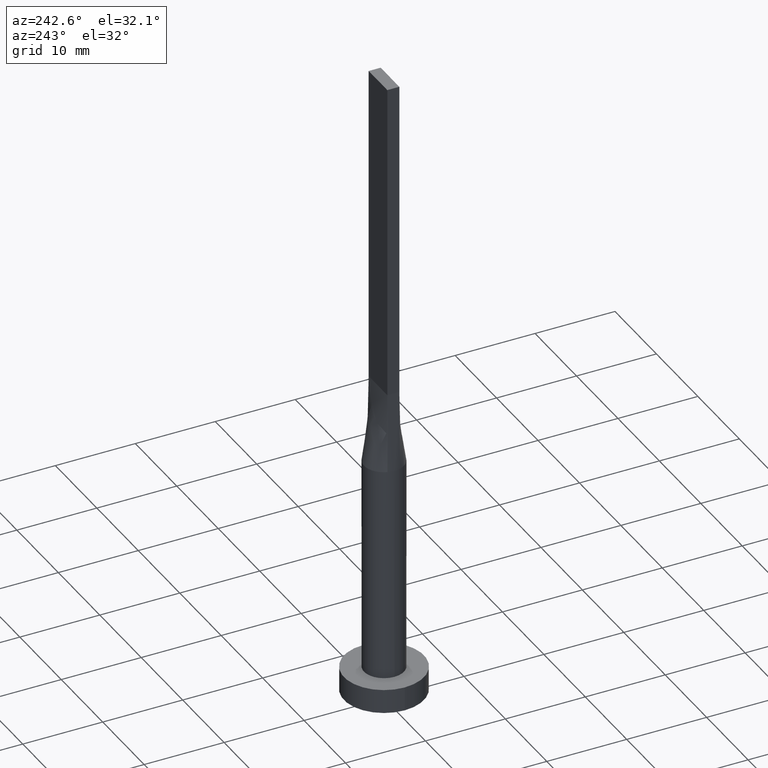
[diagram: clean part render]
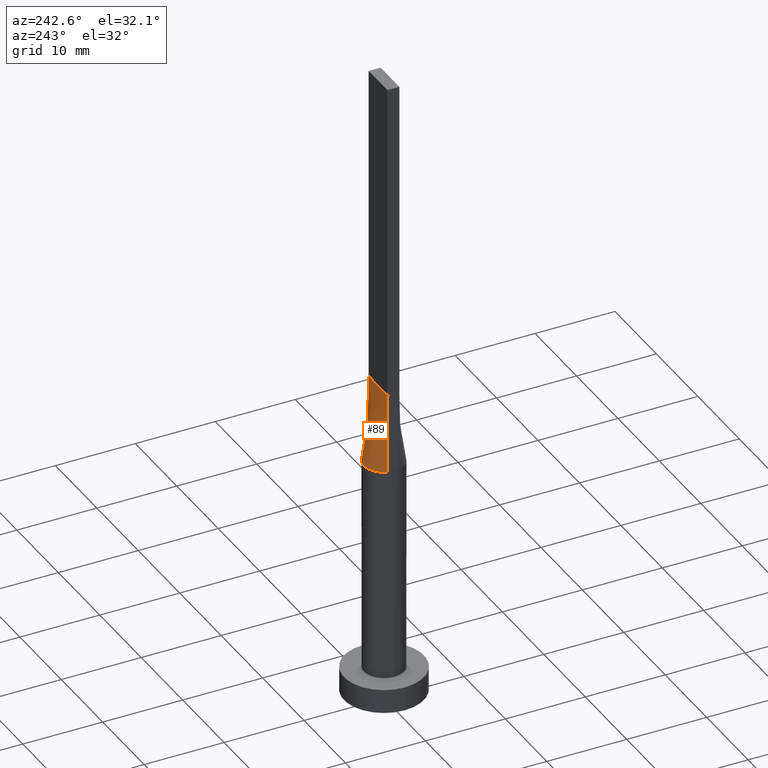
[diagram: same view with one face highlighted and labeled with its STEP entity id]
A machine part, auxiliary view. The second image highlights one B-rep face of the part: STEP entity #89.
In plain terms, the highlighted face is a freeform B-spline surface patch.
Its self-contained STEP definition (entity closure, byte-faithful):
#1 = CARTESIAN_POINT ( 'NONE',  ( 1.799471046981194977, 1.755719709239274007, 30.00000000000000355 ) ) ;
#3 = CARTESIAN_POINT ( 'NONE',  ( 0.6000386972366480443, 2.444291348568451649, 29.99999999999999645 ) ) ;
#24 = CARTESIAN_POINT ( 'NONE',  ( -0.9375000000000113243, 0.7500000000000002220, 39.99999999999999289 ) ) ;
#26 = VECTOR ( 'NONE', #455, 1000.000000000000114 ) ;
#28 = CARTESIAN_POINT ( 'NONE',  ( -0.7500000000000122125, 0.7500000000000002220, 39.99999999999999289 ) ) ;
#42 = ORIENTED_EDGE ( 'NONE', *, *, #108, .T. ) ;
#50 = CARTESIAN_POINT ( 'NONE',  ( 0.9374999999999881206, 0.7500000000000003331, 39.99999999999999289 ) ) ;
#51 = CARTESIAN_POINT ( 'NONE',  ( -1.390086206340438890, 2.094828891646495883, 30.00000000000000355 ) ) ;
#54 = CARTESIAN_POINT ( 'NONE',  ( 2.218933079238281980, 1.174882007252000315, 29.99999999999999289 ) ) ;
#58 = LINE ( 'NONE', #353, #129 ) ;
#63 = CARTESIAN_POINT ( 'NONE',  ( -1.799471046981195199, 1.755719709239274229, 30.00000000000001066 ) ) ;
#66 = LINE ( 'NONE', #196, #26 ) ;
#71 = CARTESIAN_POINT ( 'NONE',  ( -2.371795432964766359, 0.7905989074952441964, 30.00000000000000000 ) ) ;
#89 = ADVANCED_FACE ( 'NONE', ( #363 ), #153, .T. ) ;
#93 = CARTESIAN_POINT ( 'NONE',  ( -2.371795432964766359, 0.7905989074952441964, 30.00000000000000000 ) ) ;
#100 = CARTESIAN_POINT ( 'NONE',  ( 1.964343640889990361, 1.563766543189047287, 29.99999999999998934 ) ) ;
#101 = VERTEX_POINT ( 'NONE', #71 ) ;
#108 = EDGE_CURVE ( 'NONE', #101, #352, #415, .T. ) ;
#115 = CARTESIAN_POINT ( 'NONE',  ( -0.1875000000000138778, 0.7500000000000003331, 39.99999999999999289 ) ) ;
#129 = VECTOR ( 'NONE', #275, 1000.000000000000000 ) ;
#134 = CARTESIAN_POINT ( 'NONE',  ( 1.145194483530141749, 2.241235424885160921, 30.00000000000000355 ) ) ;
#137 = CARTESIAN_POINT ( 'NONE',  ( -1.964343640889990805, 1.563766543189048175, 30.00000000000000000 ) ) ;
#141 = CARTESIAN_POINT ( 'NONE',  ( 2.309208245126284975, 0.9780694150420948807, 29.99999999999999645 ) ) ;
#144 = CARTESIAN_POINT ( 'NONE',  ( 1.964343640889990361, 1.563766543189047287, 29.99999999999998934 ) ) ;
#151 = CARTESIAN_POINT ( 'NONE',  ( 1.312499999999990230, 0.7500000000000002220, 39.99999999999999289 ) ) ;
#153 = B_SPLINE_SURFACE_WITH_KNOTS ( 'NONE', 3, 1, ( 
 ( #186, #358 ),
 ( #141, #535 ),
 ( #407, #193 ),
 ( #144, #548 ),
 ( #501, #151 ),
 ( #322, #50 ),
 ( #225, #316 ),
 ( #3, #184 ),
 ( #274, #291 ),
 ( #418, #115 ),
 ( #207, #420 ),
 ( #237, #28 ),
 ( #425, #24 ),
 ( #63, #242 ),
 ( #509, #381 ),
 ( #243, #560 ),
 ( #555, #289 ),
 ( #333, #373 ) ),
 .UNSPECIFIED., .F., .F., .F.,
 ( 4, 2, 2, 2, 2, 2, 2, 2, 4 ),
 ( 2, 2 ),
 ( 0.000000000000000000, 0.1250000000000000000, 0.2500000000000000000, 0.3750000000000000000, 0.5000000000000000000, 0.6250000000000000000, 0.7500000000000000000, 0.8750000000000000000, 1.000000000000000000 ),
 ( 0.000000000000000000, 1.000000000000000000 ),
 .UNSPECIFIED. ) ;
#183 = CARTESIAN_POINT ( 'NONE',  ( -0.3003163416900526128, 2.499999999999999112, 29.99999999999999645 ) ) ;
#184 = CARTESIAN_POINT ( 'NONE',  ( 0.3749999999999862332, 0.7500000000000003331, 39.99999999999999289 ) ) ;
#186 = CARTESIAN_POINT ( 'NONE',  ( 2.371708245126284531, 0.7905694150420949917, 30.00000000000000000 ) ) ;
#188 = CARTESIAN_POINT ( 'NONE',  ( -2.309208245126284975, 0.9780694150420951027, 30.00000000000000355 ) ) ;
#193 = CARTESIAN_POINT ( 'NONE',  ( 1.874999999999995115, 0.7500000000000002220, 39.99999999999999289 ) ) ;
#196 = CARTESIAN_POINT ( 'NONE',  ( 2.310854122563142266, 0.7702847075210476069, 35.00000000000000000 ) ) ;
#197 = EDGE_CURVE ( 'NONE', #430, #573, #66, .T. ) ;
#204 = DIRECTION ( 'NONE',  ( 0.01216982305197525371, -0.004056607683991667393, 0.9999177162851859979 ) ) ;
#207 = CARTESIAN_POINT ( 'NONE',  ( -0.6000386972366482663, 2.444291348568452094, 30.00000000000000000 ) ) ;
#225 = CARTESIAN_POINT ( 'NONE',  ( 1.145194483530141749, 2.241235424885160921, 30.00000000000000355 ) ) ;
#226 = CARTESIAN_POINT ( 'NONE',  ( -2.218933079238281536, 1.174882007251999871, 29.99999999999999645 ) ) ;
#228 = CARTESIAN_POINT ( 'NONE',  ( 2.371772892450305648, 0.7905912578404317159, 30.00000000000000000 ) ) ;
#231 = CARTESIAN_POINT ( 'NONE',  ( 2.371772892450305648, 0.7905912578404317159, 30.00000000000000000 ) ) ;
#237 = CARTESIAN_POINT ( 'NONE',  ( -1.145194483530141527, 2.241235424885160921, 29.99999999999999645 ) ) ;
#239 = CARTESIAN_POINT ( 'NONE',  ( -2.310854122563142266, 0.7702847075210473848, 35.00000000000000000 ) ) ;
#242 = CARTESIAN_POINT ( 'NONE',  ( -1.312500000000008882, 0.7500000000000002220, 39.99999999999999289 ) ) ;
#243 = CARTESIAN_POINT ( 'NONE',  ( -2.218933079238281536, 1.174882007251999871, 29.99999999999999645 ) ) ;
#257 = ORIENTED_EDGE ( 'NONE', *, *, #329, .F. ) ;
#267 = CARTESIAN_POINT ( 'NONE',  ( 0.3003163416900527238, 2.499999999999999556, 30.00000000000000355 ) ) ;
#273 = B_SPLINE_CURVE_WITH_KNOTS ( 'NONE', 3,
 ( #228, #534, #54, #100, #1, #541, #134, #452, #267, #183, #310, #319, #51, #497, #137, #226, #188, #93 ),
 .UNSPECIFIED., .F., .F.,
 ( 4, 2, 2, 2, 2, 2, 2, 2, 4 ),
 ( 0.000000000000000000, 0.1250000000000000000, 0.2500000000000000000, 0.3750000000000000000, 0.5000000000000000000, 0.6250000000000000000, 0.7500000000000000000, 0.8750000000000000000, 1.000000000000000000 ),
 .UNSPECIFIED. ) ;
#274 = CARTESIAN_POINT ( 'NONE',  ( 0.3003163416900527238, 2.499999999999999556, 30.00000000000000355 ) ) ;
#275 = DIRECTION ( 'NONE',  ( -1.000000000000000000, -0.000000000000000000, -0.000000000000000000 ) ) ;
#289 = CARTESIAN_POINT ( 'NONE',  ( -2.062500000000001776, 0.7500000000000002220, 39.99999999999999289 ) ) ;
#291 = CARTESIAN_POINT ( 'NONE',  ( 0.1874999999999860112, 0.7500000000000003331, 40.00000000000000000 ) ) ;
#308 = ORIENTED_EDGE ( 'NONE', *, *, #365, .T. ) ;
#310 = CARTESIAN_POINT ( 'NONE',  ( -0.6000386972366482663, 2.444291348568452094, 30.00000000000000000 ) ) ;
#316 = CARTESIAN_POINT ( 'NONE',  ( 0.7499999999999873435, 0.7500000000000003331, 39.99999999999999289 ) ) ;
#319 = CARTESIAN_POINT ( 'NONE',  ( -1.145194483530141527, 2.241235424885160921, 29.99999999999999645 ) ) ;
#322 = CARTESIAN_POINT ( 'NONE',  ( 1.390086206340439112, 2.094828891646494995, 30.00000000000000355 ) ) ;
#329 = EDGE_CURVE ( 'NONE', #573, #352, #58, .T. ) ;
#333 = CARTESIAN_POINT ( 'NONE',  ( -2.371708245126284531, 0.7905694150420944366, 30.00000000000000000 ) ) ;
#352 = VERTEX_POINT ( 'NONE', #441 ) ;
#353 = CARTESIAN_POINT ( 'NONE',  ( -2.249999999999999556, 0.7500000000000002220, 40.00000000000000000 ) ) ;
#358 = CARTESIAN_POINT ( 'NONE',  ( 2.249999999999999556, 0.7500000000000002220, 40.00000000000000000 ) ) ;
#363 = FACE_OUTER_BOUND ( 'NONE', #383, .T. ) ;
#365 = EDGE_CURVE ( 'NONE', #430, #101, #273, .T. ) ;
#373 = CARTESIAN_POINT ( 'NONE',  ( -2.249999999999999556, 0.7500000000000002220, 40.00000000000000000 ) ) ;
#381 = CARTESIAN_POINT ( 'NONE',  ( -1.500000000000007327, 0.7500000000000002220, 39.99999999999999289 ) ) ;
#383 = EDGE_LOOP ( 'NONE', ( #308, #42, #257, #387 ) ) ;
#387 = ORIENTED_EDGE ( 'NONE', *, *, #197, .F. ) ;
#407 = CARTESIAN_POINT ( 'NONE',  ( 2.218933079238281980, 1.174882007252000315, 29.99999999999999289 ) ) ;
#415 = LINE ( 'NONE', #239, #528 ) ;
#418 = CARTESIAN_POINT ( 'NONE',  ( -0.3003163416900526128, 2.499999999999999112, 29.99999999999999645 ) ) ;
#420 = CARTESIAN_POINT ( 'NONE',  ( -0.3750000000000135447, 0.7500000000000003331, 39.99999999999999289 ) ) ;
#425 = CARTESIAN_POINT ( 'NONE',  ( -1.390086206340438890, 2.094828891646495883, 30.00000000000000355 ) ) ;
#430 = VERTEX_POINT ( 'NONE', #231 ) ;
#441 = CARTESIAN_POINT ( 'NONE',  ( -2.249999999999999556, 0.7500000000000002220, 40.00000000000000000 ) ) ;
#452 = CARTESIAN_POINT ( 'NONE',  ( 0.6000386972366480443, 2.444291348568451649, 29.99999999999999645 ) ) ;
#455 = DIRECTION ( 'NONE',  ( -0.01216982305197525371, -0.004056607683991722904, 0.9999177162851859979 ) ) ;
#497 = CARTESIAN_POINT ( 'NONE',  ( -1.799471046981195199, 1.755719709239274229, 30.00000000000001066 ) ) ;
#501 = CARTESIAN_POINT ( 'NONE',  ( 1.799471046981194977, 1.755719709239274007, 30.00000000000000355 ) ) ;
#509 = CARTESIAN_POINT ( 'NONE',  ( -1.964343640889990805, 1.563766543189048175, 30.00000000000000000 ) ) ;
#528 = VECTOR ( 'NONE', #204, 1000.000000000000114 ) ;
#534 = CARTESIAN_POINT ( 'NONE',  ( 2.309208245126284975, 0.9780694150420948807, 29.99999999999999645 ) ) ;
#535 = CARTESIAN_POINT ( 'NONE',  ( 2.062499999999996891, 0.7500000000000002220, 39.99999999999999289 ) ) ;
#541 = CARTESIAN_POINT ( 'NONE',  ( 1.390086206340439112, 2.094828891646494995, 30.00000000000000355 ) ) ;
#548 = CARTESIAN_POINT ( 'NONE',  ( 1.499999999999991784, 0.7500000000000002220, 39.99999999999999289 ) ) ;
#554 = CARTESIAN_POINT ( 'NONE',  ( 2.249999999999999556, 0.7500000000000002220, 40.00000000000000000 ) ) ;
#555 = CARTESIAN_POINT ( 'NONE',  ( -2.309208245126284975, 0.9780694150420951027, 30.00000000000000355 ) ) ;
#560 = CARTESIAN_POINT ( 'NONE',  ( -1.875000000000003775, 0.7500000000000002220, 39.99999999999999289 ) ) ;
#573 = VERTEX_POINT ( 'NONE', #554 ) ;